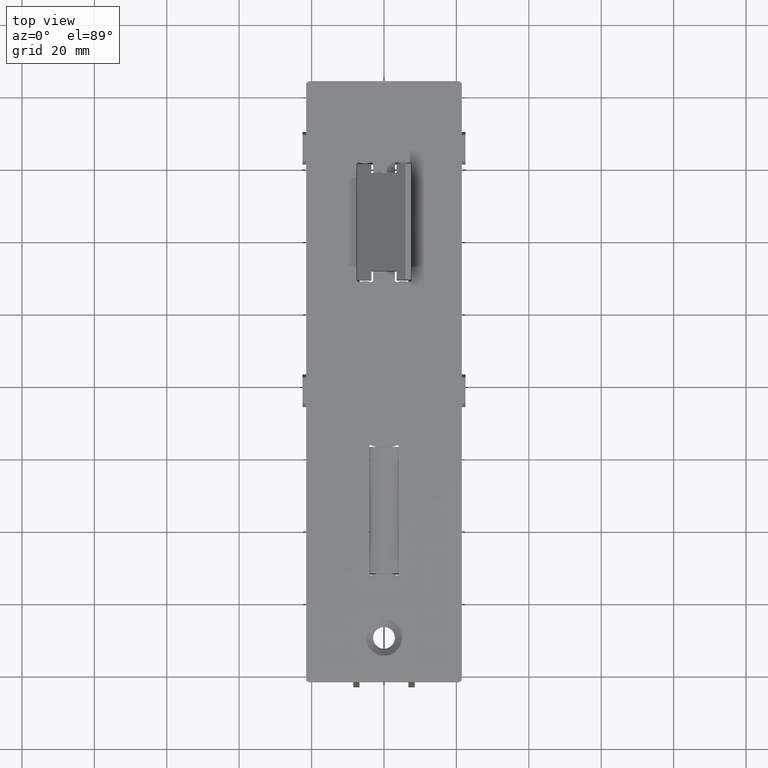
[diagram: clean part render]
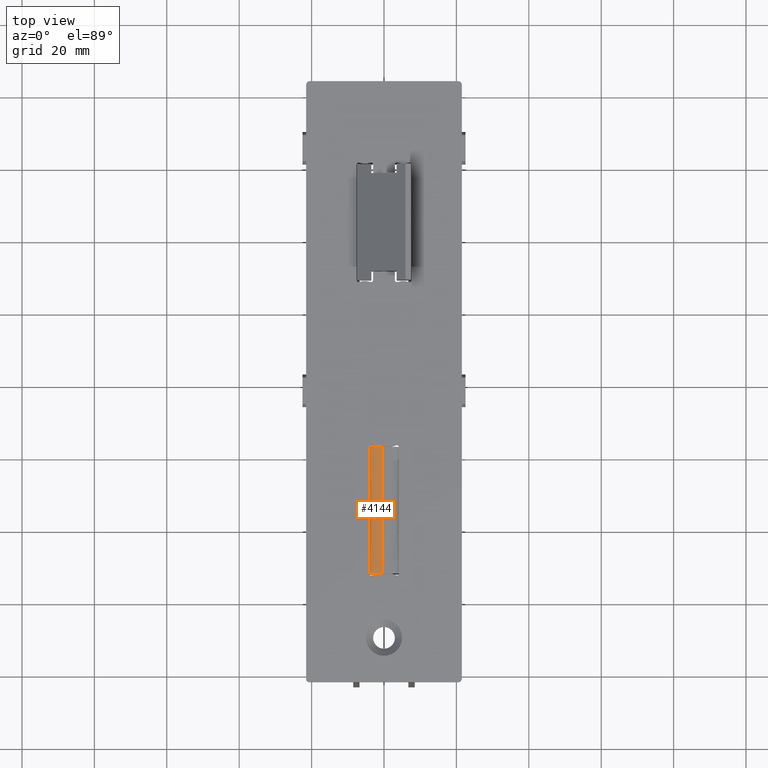
[diagram: same view with one face highlighted and labeled with its STEP entity id]
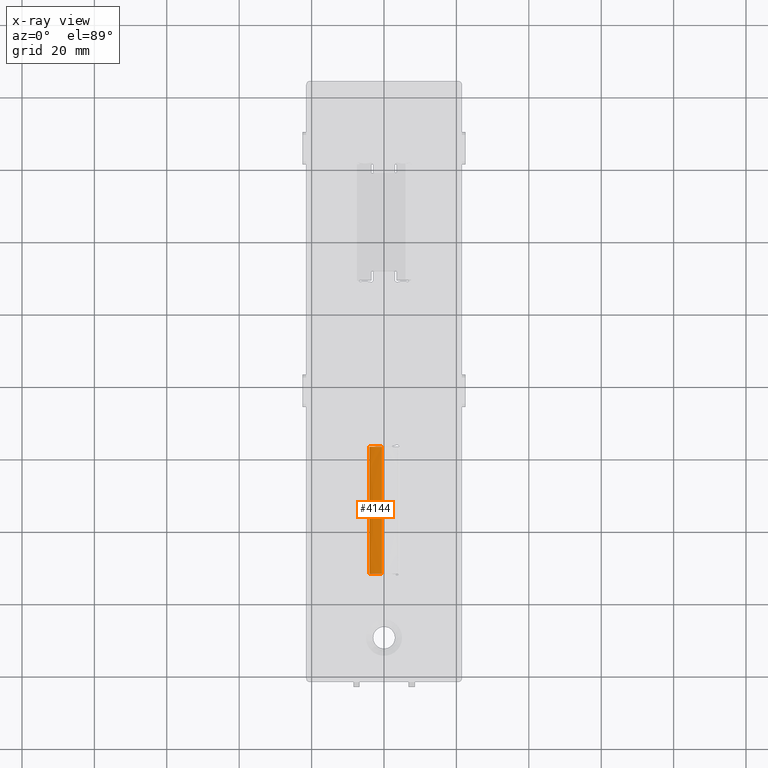
[diagram: x-ray of the same camera — body ghosted, the highlighted face saturated]
A machine part, top view. The second image highlights one B-rep face of the part: STEP entity #4144.
The next image is the same camera in x-ray: the body ghosted, the highlighted face saturated — about 0% of this face is hidden behind the body in this view.
In plain terms, the highlighted face is a freeform B-spline surface patch.
Its self-contained STEP definition (entity closure, byte-faithful):
#921 = CARTESIAN_POINT ( 'NONE',  ( -3.786444490018308517, -17.50000000000000355, 7.897660237106007841 ) ) ;
#981 = CARTESIAN_POINT ( 'NONE',  ( -0.9761662841068123875, -17.50000000000000000, 8.495302994223614235 ) ) ;
#1032 = CARTESIAN_POINT ( 'NONE',  ( -2.478718872497035708, 17.50000000000000355, 8.339142379151860851 ) ) ;
#1035 = ORIENTED_EDGE ( 'NONE', *, *, #17893, .F. ) ;
#1057 = CARTESIAN_POINT ( 'NONE',  ( -3.378202023060508985, -17.49999999999999645, 8.098782905346993743 ) ) ;
#1100 = EDGE_CURVE ( 'NONE', #18473, #6416, #2117, .T. ) ;
#1126 = CARTESIAN_POINT ( 'NONE',  ( -1.389080209897880058, -17.50000000000000000, 8.472698653924762624 ) ) ;
#1171 = CARTESIAN_POINT ( 'NONE',  ( -3.820786339552938227, 17.50000000000000000, 7.874163397565355993 ) ) ;
#1344 = CARTESIAN_POINT ( 'NONE',  ( -0.5749999999999984013, -5.833333333333334814, 8.500000000000000000 ) ) ;
#1486 = B_SPLINE_CURVE_WITH_KNOTS ( 'NONE', 3,
 ( #17122, #18669, #13370, #8554 ),
 .UNSPECIFIED., .F., .F.,
 ( 4, 4 ),
 ( 0.000000000000000000, 1.000000000000000000 ),
 .UNSPECIFIED. ) ;
#2117 = B_SPLINE_CURVE_WITH_KNOTS ( 'NONE', 3,
 ( #7144, #8660, #981, #5536, #1126, #14710, #5480, #19376, #4134, #13359, #19170, #2400, #13215, #17727, #4210, #16202, #5613, #16251, #19247, #11544, #16147, #7212, #3958, #14842, #1057, #10160, #10221, #14909, #13086, #921, #5741, #10282, #14634, #11748, #2588, #5678, #16325, #17611, #11626, #17863, #19444, #8733, #8488 ),
 .UNSPECIFIED., .F., .F.,
 ( 4, 1, 1, 1, 2, 2, 1, 1, 1, 1, 2, 2, 1, 1, 1, 1, 1, 2, 2, 1, 1, 1, 1, 2, 2, 1, 1, 1, 2, 2, 4 ),
 ( 0.000000000000000000, 0.1249999999999933942, 0.1874999999999900913, 0.2187499999999883704, 0.2343749999999875377, 0.2499999999999867051, 0.3749999999999789613, 0.4374999999999752420, 0.4687499999999734657, 0.4843749999999725775, 0.4921874999999724110, 0.4999999999999722999, 0.6249999999999669154, 0.6874999999999639178, 0.7187499999999623634, 0.7343749999999614753, 0.7421874999999613642, 0.7460937499999612532, 0.7499999999999611422, 0.8124999999999620304, 0.8437499999999623634, 0.8593749999999625855, 0.8671874999999630296, 0.8710937499999638067, 0.8749999999999645839, 0.9062499999999718003, 0.9218749999999749090, 0.9296874999999766853, 0.9335937499999780176, 0.9374999999999792388, 1.000000000000000000 ),
 .UNSPECIFIED. ) ;
#2400 = CARTESIAN_POINT ( 'NONE',  ( -2.339196060528512255, -17.49999999999999645, 8.363837099196690161 ) ) ;
#2447 = CARTESIAN_POINT ( 'NONE',  ( -2.095257168945774850, 17.50000000000000000, 8.403192714043576927 ) ) ;
#2512 = CARTESIAN_POINT ( 'NONE',  ( -3.662337398989335746, 17.49999999999999645, 7.974282811732675391 ) ) ;
#2588 = CARTESIAN_POINT ( 'NONE',  ( -3.898796063623712893, -17.50000000000000355, 7.815508467295652295 ) ) ;
#3938 = CARTESIAN_POINT ( 'NONE',  ( -1.609530477746573318, 17.50000000000000000, 8.455340661716471473 ) ) ;
#3958 = CARTESIAN_POINT ( 'NONE',  ( -3.367723810807651041, -17.49999999999999645, 8.102763609029588920 ) ) ;
#4004 = CARTESIAN_POINT ( 'NONE',  ( -3.929062377900733871, 17.50000000000000355, 7.788196856999224593 ) ) ;
#4014 = EDGE_LOOP ( 'NONE', ( #1035, #14493, #5617, #12831 ) ) ;
#4134 = CARTESIAN_POINT ( 'NONE',  ( -1.693067953910039947, -17.50000000000000000, 8.448917396881386210 ) ) ;
#4144 = ADVANCED_FACE ( 'NONE', ( #17940 ), #4357, .T. ) ;
#4190 = CARTESIAN_POINT ( 'NONE',  ( -0.5750000000000017319, 17.50000000000000000, 8.500000000000000000 ) ) ;
#4210 = CARTESIAN_POINT ( 'NONE',  ( -2.450428465853816018, -17.50000000000000000, 8.344326455680684873 ) ) ;
#4357 =( BOUNDED_SURFACE ( )  B_SPLINE_SURFACE ( 2, 3, ( 
 ( #18209, #7568, #13847, #15187 ),
 ( #13788, #18140, #7679, #4693 ),
 ( #16607, #16670, #9277, #12293 ) ),
 .UNSPECIFIED., .F., .F., .T. ) 
 B_SPLINE_SURFACE_WITH_KNOTS ( ( 3, 3 ),
 ( 4, 4 ),
 ( 0.000000000000000000, 1.000000000000000000 ),
 ( -0.01925000000000000322, 0.01925000000000000322 ),
 .UNSPECIFIED. ) 
 GEOMETRIC_REPRESENTATION_ITEM ( )  RATIONAL_B_SPLINE_SURFACE ( (
 ( 1.000000000000000000, 1.000000000000000000, 1.000000000000000000, 1.000000000000000000),
 ( 0.7071067811865475727, 0.7071067811865475727, 0.7071067811865475727, 0.7071067811865475727),
 ( 1.000000000000000000, 1.000000000000000000, 1.000000000000000000, 1.000000000000000000) ) ) 
 REPRESENTATION_ITEM ( '' )  SURFACE ( )  );
#4553 = CARTESIAN_POINT ( 'NONE',  ( -0.5749999999999998446, 5.833333333333334814, 8.500000000000000000 ) ) ;
#4693 = CARTESIAN_POINT ( 'NONE',  ( -4.075000000000001954, 19.25000000000000355, 8.500000000000001776 ) ) ;
#5058 = EDGE_CURVE ( 'NONE', #13944, #18473, #10061, .T. ) ;
#5353 = CARTESIAN_POINT ( 'NONE',  ( -4.064249275944684214, 17.50000000000000000, 7.592480520270557420 ) ) ;
#5480 = CARTESIAN_POINT ( 'NONE',  ( -1.486541734634179823, -17.50000000000000000, 8.465506363829675252 ) ) ;
#5536 = CARTESIAN_POINT ( 'NONE',  ( -1.252086472814120333, -17.50000000000000355, 8.481603394042492639 ) ) ;
#5589 = CARTESIAN_POINT ( 'NONE',  ( -1.215215181727034466, 17.50000000000000355, 8.487461437076737170 ) ) ;
#5613 = CARTESIAN_POINT ( 'NONE',  ( -2.646998992953237373, -17.50000000000000000, 8.308222118940211232 ) ) ;
#5617 = ORIENTED_EDGE ( 'NONE', *, *, #1100, .F. ) ;
#5678 = CARTESIAN_POINT ( 'NONE',  ( -3.947194441497967610, -17.50000000000000000, 7.768396609333370506 ) ) ;
#5726 = CARTESIAN_POINT ( 'NONE',  ( -2.514155945118991653, 17.50000000000000355, 8.332496698027961557 ) ) ;
#5741 = CARTESIAN_POINT ( 'NONE',  ( -3.797160470116939468, -17.50000000000000000, 7.890469262168383402 ) ) ;
#6416 = VERTEX_POINT ( 'NONE', #14023 ) ;
#6996 = CARTESIAN_POINT ( 'NONE',  ( -2.323077169843172918, 17.50000000000000000, 8.367781914649448538 ) ) ;
#7071 = CARTESIAN_POINT ( 'NONE',  ( -3.051310530891383710, 17.50000000000000000, 8.211393244891178611 ) ) ;
#7129 = CARTESIAN_POINT ( 'NONE',  ( -3.756506111252501334, 17.50000000000000355, 7.918860303529442923 ) ) ;
#7144 = CARTESIAN_POINT ( 'NONE',  ( -0.5749999999999969580, -17.50000000000000000, 8.500000000000000000 ) ) ;
#7211 = CARTESIAN_POINT ( 'NONE',  ( -0.5749999999999969580, -17.50000000000000000, 8.500000000000000000 ) ) ;
#7212 = CARTESIAN_POINT ( 'NONE',  ( -3.355728408766602389, -17.50000000000000711, 8.107292149309600404 ) ) ;
#7568 = CARTESIAN_POINT ( 'NONE',  ( -4.074999999999998401, -6.416666666666660745, 7.500000000000000888 ) ) ;
#7679 = CARTESIAN_POINT ( 'NONE',  ( -4.075000000000001954, 6.416666666666667851, 8.500000000000001776 ) ) ;
#8442 = CARTESIAN_POINT ( 'NONE',  ( -4.075000000000001066, 17.50000000000000000, 7.500000000000000888 ) ) ;
#8488 = CARTESIAN_POINT ( 'NONE',  ( -4.074999999999996625, -17.50000000000000000, 7.500000000000000888 ) ) ;
#8532 = CARTESIAN_POINT ( 'NONE',  ( -3.814878032308822053, 17.50000000000000000, 7.878315517410949376 ) ) ;
#8554 = CARTESIAN_POINT ( 'NONE',  ( -4.075000000000001066, 17.50000000000000000, 7.500000000000000888 ) ) ;
#8641 = CARTESIAN_POINT ( 'NONE',  ( -3.873765199156361305, 17.50000000000000000, 7.834711119882400432 ) ) ;
#8660 = CARTESIAN_POINT ( 'NONE',  ( -0.7363500402894834762, -17.50000000000001066, 8.500000000000003553 ) ) ;
#8733 = CARTESIAN_POINT ( 'NONE',  ( -4.074999999999998401, -17.50000000000000355, 7.574574139107907556 ) ) ;
#8779 = CARTESIAN_POINT ( 'NONE',  ( -1.815308725826149550, 17.50000000000000000, 8.435717712811856117 ) ) ;
#9277 = CARTESIAN_POINT ( 'NONE',  ( -0.5750000000000015099, 6.416666666666667851, 8.500000000000000000 ) ) ;
#10061 = B_SPLINE_CURVE_WITH_KNOTS ( 'NONE', 3,
 ( #12104, #4553, #1344, #15307 ),
 .UNSPECIFIED., .F., .F.,
 ( 4, 4 ),
 ( 0.000000000000000000, 1.000000000000000000 ),
 .UNSPECIFIED. ) ;
#10073 = CARTESIAN_POINT ( 'NONE',  ( -3.996049370218766050, 17.50000000000000000, 7.711237098521239730 ) ) ;
#10139 = CARTESIAN_POINT ( 'NONE',  ( -3.843482748339833499, 17.50000000000000355, 7.857771422098029923 ) ) ;
#10160 = CARTESIAN_POINT ( 'NONE',  ( -3.470473349755514469, -17.50000000000000355, 8.063345065369771802 ) ) ;
#10208 = CARTESIAN_POINT ( 'NONE',  ( -3.391682287244250471, 17.50000000000000000, 8.093593951351657267 ) ) ;
#10221 = CARTESIAN_POINT ( 'NONE',  ( -3.589056768776950346, -17.50000000000000000, 8.011348509304527354 ) ) ;
#10265 = CARTESIAN_POINT ( 'NONE',  ( -3.829940156251819161, 17.50000000000000000, 7.867612231070594042 ) ) ;
#10282 = CARTESIAN_POINT ( 'NONE',  ( -3.804243613185968709, -17.50000000000000000, 7.885665035833237191 ) ) ;
#10330 = CARTESIAN_POINT ( 'NONE',  ( -3.261070808168503810, 17.50000000000000000, 8.144012239229880379 ) ) ;
#10556 = CARTESIAN_POINT ( 'NONE',  ( -4.075000000000001066, 17.50000000000000000, 7.500000000000000888 ) ) ;
#11448 = EDGE_CURVE ( 'NONE', #6416, #18540, #1486, .T. ) ;
#11544 = CARTESIAN_POINT ( 'NONE',  ( -3.269914021733718368, -17.50000000000000355, 8.138420126509535280 ) ) ;
#11605 = CARTESIAN_POINT ( 'NONE',  ( -2.491936977077683579, 17.50000000000000711, 8.336685138360653724 ) ) ;
#11626 = CARTESIAN_POINT ( 'NONE',  ( -3.983286058347856873, -17.49999999999999645, 7.727439539107066935 ) ) ;
#11672 = CARTESIAN_POINT ( 'NONE',  ( -3.461523188731072675, 17.50000000000000000, 8.065707057183763240 ) ) ;
#11748 = CARTESIAN_POINT ( 'NONE',  ( -3.848586460921443297, -17.50000000000000000, 7.854958949868935392 ) ) ;
#11880 = CARTESIAN_POINT ( 'NONE',  ( -2.771975305268350009, 17.50000000000000000, 8.279583718016322536 ) ) ;
#12104 = CARTESIAN_POINT ( 'NONE',  ( -0.5750000000000017319, 17.50000000000000000, 8.500000000000000000 ) ) ;
#12293 = CARTESIAN_POINT ( 'NONE',  ( -0.5750000000000015099, 19.25000000000000355, 8.500000000000000000 ) ) ;
#12831 = ORIENTED_EDGE ( 'NONE', *, *, #5058, .F. ) ;
#13064 = CARTESIAN_POINT ( 'NONE',  ( -4.002768572753340415, 17.49999999999999645, 7.702141859679422886 ) ) ;
#13086 = CARTESIAN_POINT ( 'NONE',  ( -3.760801677989203728, -17.50000000000000355, 7.914331626671430087 ) ) ;
#13215 = CARTESIAN_POINT ( 'NONE',  ( -2.404283249883444995, -17.50000000000000355, 8.352586361069761267 ) ) ;
#13274 = CARTESIAN_POINT ( 'NONE',  ( -3.991689786303805665, 17.49999999999999645, 7.716907065788487508 ) ) ;
#13359 = CARTESIAN_POINT ( 'NONE',  ( -1.936718069193456682, -17.50000000000000000, 8.423605389401178201 ) ) ;
#13370 = CARTESIAN_POINT ( 'NONE',  ( -4.074999999999999289, 5.833333333333331261, 7.500000000000000888 ) ) ;
#13788 = CARTESIAN_POINT ( 'NONE',  ( -4.074999999999997513, -19.25000000000000355, 8.500000000000001776 ) ) ;
#13847 = CARTESIAN_POINT ( 'NONE',  ( -4.074999999999999289, 6.416666666666660745, 7.500000000000000888 ) ) ;
#13930 = CARTESIAN_POINT ( 'NONE',  ( -4.075000000000001954, 17.50000000000000711, 7.537108637201741956 ) ) ;
#13944 = VERTEX_POINT ( 'NONE', #16776 ) ;
#14023 = CARTESIAN_POINT ( 'NONE',  ( -4.074999999999996625, -17.50000000000000000, 7.500000000000000888 ) ) ;
#14493 = ORIENTED_EDGE ( 'NONE', *, *, #11448, .F. ) ;
#14617 = CARTESIAN_POINT ( 'NONE',  ( -3.967429577586742084, 17.49999999999999645, 7.747652645753214884 ) ) ;
#14634 = CARTESIAN_POINT ( 'NONE',  ( -3.806566619489712533, -17.50000000000000000, 7.884081256815993477 ) ) ;
#14692 = CARTESIAN_POINT ( 'NONE',  ( -3.398481451529239195, 17.49999999999999645, 8.090952801103160397 ) ) ;
#14710 = CARTESIAN_POINT ( 'NONE',  ( -1.447584734947371166, -17.50000000000000000, 8.468441992439913690 ) ) ;
#14756 = CARTESIAN_POINT ( 'NONE',  ( -2.547329866367863627, 17.50000000000000355, 8.326167516546135516 ) ) ;
#14842 = CARTESIAN_POINT ( 'NONE',  ( -3.375695622062969470, -17.50000000000000000, 8.099736802519649004 ) ) ;
#14888 = CARTESIAN_POINT ( 'NONE',  ( -3.409146654310856395, 17.49999999999999645, 8.086769627153588047 ) ) ;
#14909 = CARTESIAN_POINT ( 'NONE',  ( -3.706960620068477041, -17.49999999999999645, 7.947244197979496327 ) ) ;
#15187 = CARTESIAN_POINT ( 'NONE',  ( -4.075000000000001066, 19.25000000000000355, 7.500000000000000888 ) ) ;
#15254 = B_SPLINE_CURVE_WITH_KNOTS ( 'NONE', 3,
 ( #8442, #13930, #5353, #17614, #16130, #13064, #10073, #13274, #14617, #4004, #8641, #10139, #10265, #1171, #8532, #7129, #2512, #17911, #11672, #19301, #14888, #14692, #10208, #10330, #7071, #11880, #16237, #14756, #5726, #11605, #1032, #6996, #2447, #8779, #16378, #3938, #19226, #17652, #5589, #17779, #4190 ),
 .UNSPECIFIED., .F., .F.,
 ( 4, 1, 1, 1, 2, 2, 1, 1, 1, 2, 2, 1, 1, 1, 1, 2, 2, 1, 1, 1, 1, 2, 2, 1, 1, 1, 2, 2, 4 ),
 ( 0.000000000000000000, 0.03125000000000600908, 0.04687500000000901362, 0.05468750000001035283, 0.05859375000001102590, 0.06250000000001168510, 0.09375000000001400269, 0.1093750000000155986, 0.1171875000000168060, 0.1210937500000172778, 0.1250000000000177358, 0.1875000000000236755, 0.2187500000000264788, 0.2343750000000275058, 0.2421875000000280054, 0.2460937500000283384, 0.2500000000000286438, 0.3750000000000263123, 0.4375000000000252576, 0.4687500000000248135, 0.4843750000000245359, 0.4921875000000242584, 0.5000000000000239808, 0.6250000000000182077, 0.6875000000000155431, 0.7187500000000140998, 0.7343750000000133227, 0.7500000000000125455, 1.000000000000000000 ),
 .UNSPECIFIED. ) ;
#15307 = CARTESIAN_POINT ( 'NONE',  ( -0.5749999999999969580, -17.50000000000000000, 8.500000000000000000 ) ) ;
#16130 = CARTESIAN_POINT ( 'NONE',  ( -4.012511416428471200, 17.50000000000000000, 7.688489905393768531 ) ) ;
#16147 = CARTESIAN_POINT ( 'NONE',  ( -3.327475341230982320, -17.50000000000000355, 8.117777056901987365 ) ) ;
#16202 = CARTESIAN_POINT ( 'NONE',  ( -2.457663795885683289, -17.50000000000000000, 8.343013805170770070 ) ) ;
#16237 = CARTESIAN_POINT ( 'NONE',  ( -2.623653966923569669, 17.50000000000000000, 8.311073779542295981 ) ) ;
#16251 = CARTESIAN_POINT ( 'NONE',  ( -2.895000940821504276, -17.50000000000000355, 8.253129667992530116 ) ) ;
#16325 = CARTESIAN_POINT ( 'NONE',  ( -3.968848757448827147, -17.50000000000000355, 7.744569106612200216 ) ) ;
#16378 = CARTESIAN_POINT ( 'NONE',  ( -1.671794893748171251, 17.49999999999999645, 8.449783312064768737 ) ) ;
#16607 = CARTESIAN_POINT ( 'NONE',  ( -0.5749999999999967359, -19.25000000000000355, 8.500000000000000000 ) ) ;
#16670 = CARTESIAN_POINT ( 'NONE',  ( -0.5749999999999967359, -6.416666666666667851, 8.500000000000000000 ) ) ;
#16776 = CARTESIAN_POINT ( 'NONE',  ( -0.5750000000000017319, 17.50000000000000000, 8.500000000000000000 ) ) ;
#17122 = CARTESIAN_POINT ( 'NONE',  ( -4.074999999999996625, -17.50000000000000000, 7.500000000000000888 ) ) ;
#17611 = CARTESIAN_POINT ( 'NONE',  ( -3.977583848644995257, -17.49999999999999645, 7.734299125358838900 ) ) ;
#17614 = CARTESIAN_POINT ( 'NONE',  ( -4.032892997450010064, 17.50000000000000000, 7.656571673233385944 ) ) ;
#17652 = CARTESIAN_POINT ( 'NONE',  ( -1.545340455049605932, 17.49999999999999645, 8.460816990864799436 ) ) ;
#17727 = CARTESIAN_POINT ( 'NONE',  ( -2.431994777129352858, -17.50000000000000000, 8.347646205874188041 ) ) ;
#17779 = CARTESIAN_POINT ( 'NONE',  ( -0.8982414079521167105, 17.50000000000000355, 8.500000000000001776 ) ) ;
#17863 = CARTESIAN_POINT ( 'NONE',  ( -3.985215095217545134, -17.49999999999999645, 7.725089694150556241 ) ) ;
#17893 = EDGE_CURVE ( 'NONE', #18540, #13944, #15254, .T. ) ;
#17911 = CARTESIAN_POINT ( 'NONE',  ( -3.531891636321705441, 17.50000000000000000, 8.035762322405261671 ) ) ;
#17940 = FACE_OUTER_BOUND ( 'NONE', #4014, .T. ) ;
#18140 = CARTESIAN_POINT ( 'NONE',  ( -4.074999999999997513, -6.416666666666667851, 8.500000000000001776 ) ) ;
#18209 = CARTESIAN_POINT ( 'NONE',  ( -4.074999999999996625, -19.25000000000000355, 7.500000000000000888 ) ) ;
#18473 = VERTEX_POINT ( 'NONE', #7211 ) ;
#18540 = VERTEX_POINT ( 'NONE', #10556 ) ;
#18669 = CARTESIAN_POINT ( 'NONE',  ( -4.074999999999998401, -5.833333333333334814, 7.500000000000000888 ) ) ;
#19170 = CARTESIAN_POINT ( 'NONE',  ( -2.207313845360724613, -17.50000000000000000, 8.385233412799529162 ) ) ;
#19226 = CARTESIAN_POINT ( 'NONE',  ( -1.567852314197023755, 17.49999999999999645, 8.458940947192312265 ) ) ;
#19247 = CARTESIAN_POINT ( 'NONE',  ( -3.150570645035099648, -17.50000000000000000, 8.178399283415727083 ) ) ;
#19301 = CARTESIAN_POINT ( 'NONE',  ( -3.425052573371552000, 17.50000000000000000, 8.080480669433558916 ) ) ;
#19376 = CARTESIAN_POINT ( 'NONE',  ( -1.504474928163168412, -17.50000000000000000, 8.464112273402365716 ) ) ;
#19444 = CARTESIAN_POINT ( 'NONE',  ( -4.046268830469614386, -17.50000000000000711, 7.648094324018246404 ) ) ;